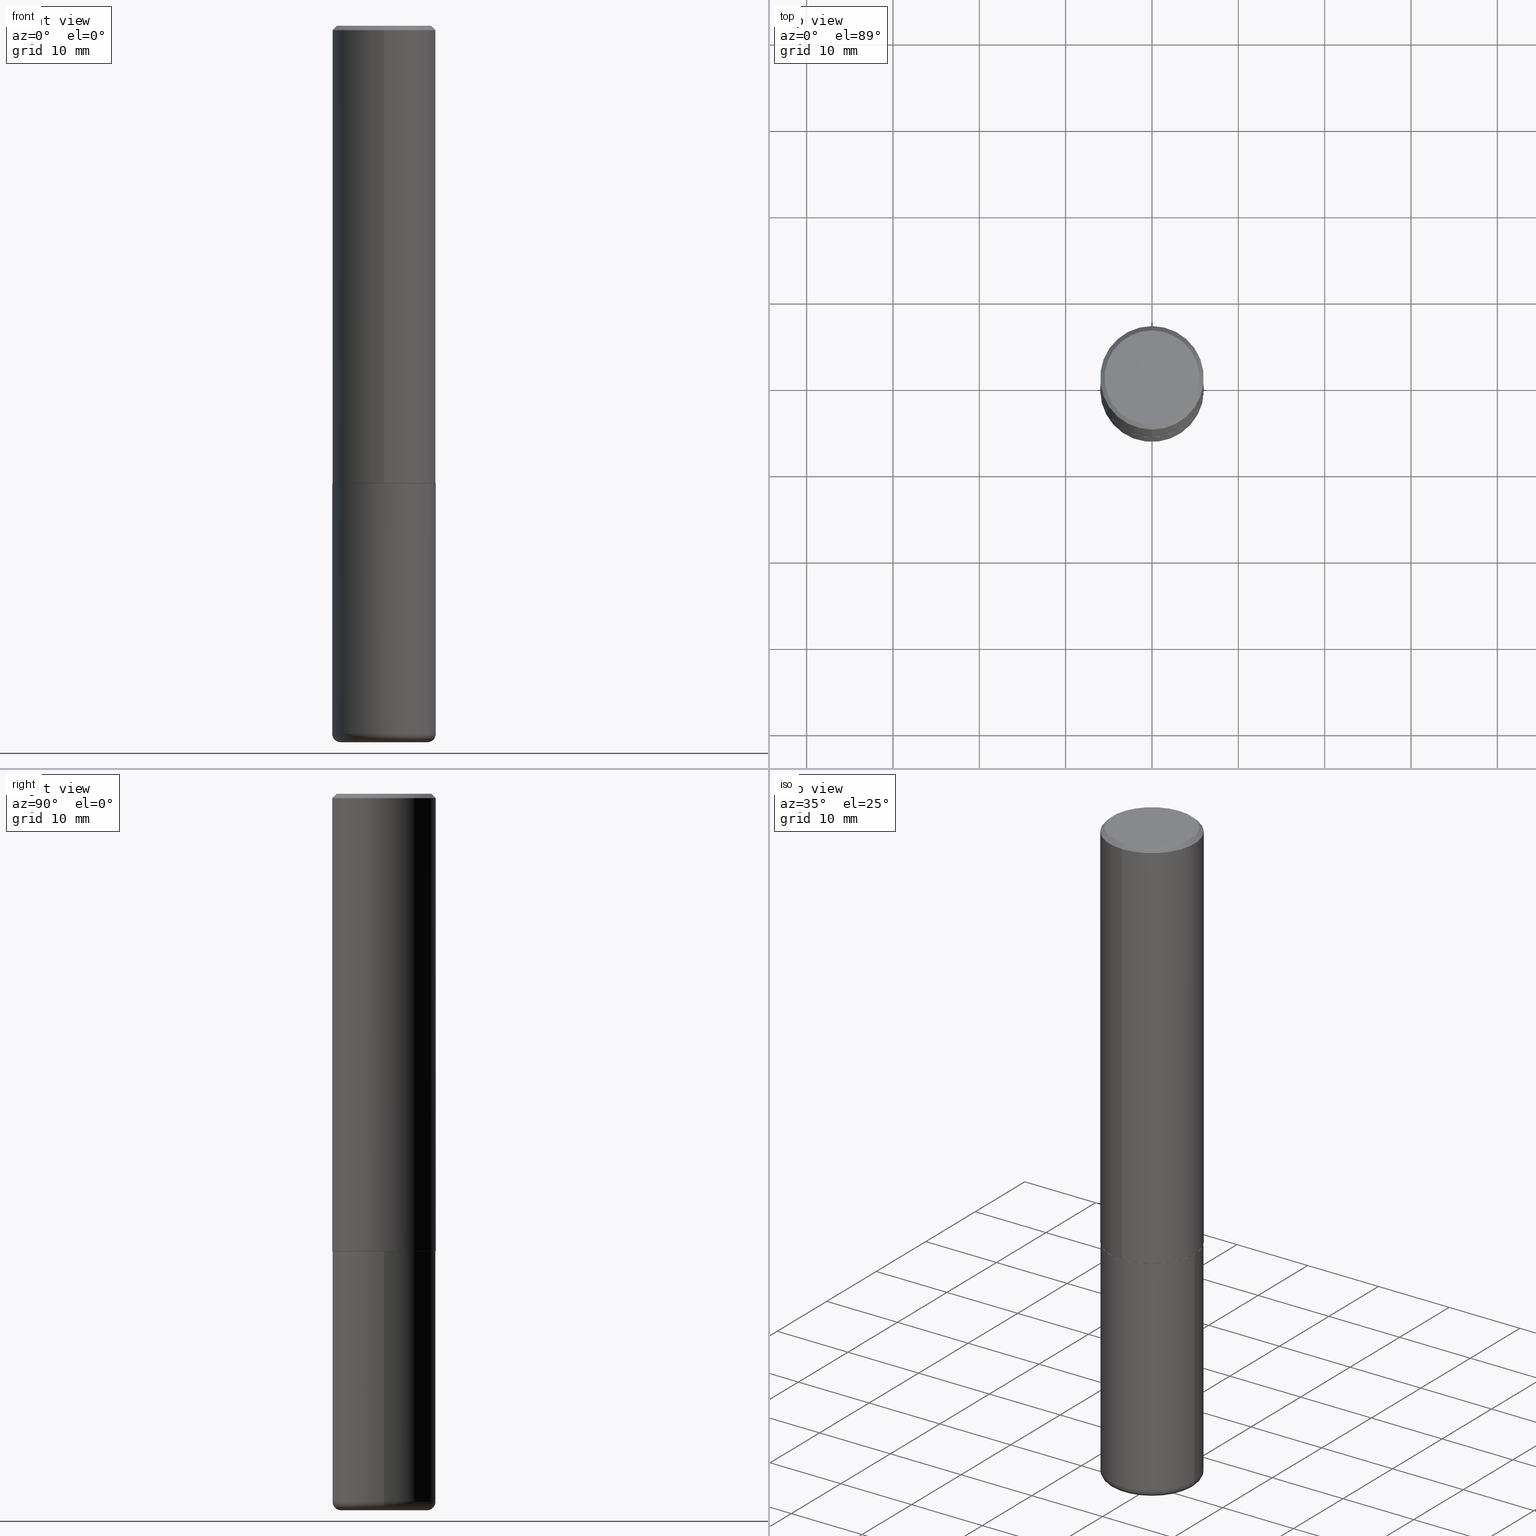
[diagram: canonical four-view strip — front | top / right | iso, engineering-drawing reading convention]
A machine part, canonical four-view strip (front | top / right | iso — engineering-drawing reading convention). The complete STEP part file that produces these views, byte-faithful:
ISO-10303-21;
HEADER;
FILE_DESCRIPTION (( 'STEP AP203' ),
    '1' );
FILE_NAME ('74443.STEP',
    '2024-03-06T15:14:48',
    ( '' ),
    ( '' ),
    'SwSTEP 2.0',
    'SolidWorks 2023',
    '' );
FILE_SCHEMA (( 'CONFIG_CONTROL_DESIGN' ));
ENDSEC;

DATA;
#1 = ORIENTED_EDGE ( 'NONE', *, *, #415, .F. ) ;
#2 = ORIENTED_EDGE ( 'NONE', *, *, #52, .T. ) ;
#3 = CALENDAR_DATE ( 2024, 6, 3 ) ;
#4 = COORDINATED_UNIVERSAL_TIME_OFFSET ( 5, 0, .BEHIND. ) ;
#5 = EDGE_LOOP ( 'NONE', ( #2, #31, #163, #109 ) ) ;
#6 = APPROVAL_ROLE ( '' ) ;
#7 = CARTESIAN_POINT ( 'NONE',  ( -6.055996773249123304E-45, 8.648664241745118212E-31, 2.476745178514206857E-16 ) ) ;
#8 = FACE_OUTER_BOUND ( 'NONE', #297, .T. ) ;
#9 = AXIS2_PLACEMENT_3D ( 'NONE', #146, #309, #22 ) ;
#10 = LOCAL_TIME ( 10, 14, 48.00000000000000000, #85 ) ;
#11 = DIRECTION ( 'NONE',  ( 1.000000000000000000, -6.982962677686265133E-15, 0.000000000000000000 ) ) ;
#12 = CC_DESIGN_PERSON_AND_ORGANIZATION_ASSIGNMENT ( #202, #379, ( #329 ) ) ;
#13 = EDGE_LOOP ( 'NONE', ( #171, #194, #40, #131 ) ) ;
#14 = LINE ( 'NONE', #217, #325 ) ;
#15 = DIMENSIONAL_EXPONENTS ( 1.000000000000000000, 0.000000000000000000, 0.000000000000000000, 0.000000000000000000, 0.000000000000000000, 0.000000000000000000, 0.000000000000000000 ) ;
#16 = CARTESIAN_POINT ( 'NONE',  ( 7.894706947007477118E-29, -1.127154920618732880E-14, -3.228299999999999947 ) ) ;
#17 = DIRECTION ( 'NONE',  ( 1.000000000000000000, -6.982962677686265133E-15, 0.000000000000000000 ) ) ;
#18 = DIRECTION ( 'NONE',  ( 1.000000000000000000, -6.982962677686270655E-15, 4.883557194083114583E-29 ) ) ;
#19 = AXIS2_PLACEMENT_3D ( 'NONE', #16, #122, #176 ) ;
#20 = AXIS2_PLACEMENT_3D ( 'NONE', #286, #373, #220 ) ;
#21 = EDGE_CURVE ( 'NONE', #207, #164, #383, .T. ) ;
#22 = DIRECTION ( 'NONE',  ( -6.982962677686265133E-15, -1.000000000000000000, 3.484499991918703113E-15 ) ) ;
#23 = CYLINDRICAL_SURFACE ( 'NONE', #372, 0.2361999999999999933 ) ;
#24 = CARTESIAN_POINT ( 'NONE',  ( 0.2362000000000000210, -1.292092499065682375E-14, -3.228299999999999947 ) ) ;
#25 = PLANE ( 'NONE',  #351 ) ;
#26 = DIRECTION ( 'NONE',  ( -6.982962677686266711E-15, -1.000000000000000000, 3.491481338843145583E-15 ) ) ;
#27 = AXIS2_PLACEMENT_3D ( 'NONE', #79, #205, #237 ) ;
#28 = PERSON_AND_ORGANIZATION ( #121, #161 ) ;
#29 = DIRECTION ( 'NONE',  ( 1.000000000000000000, -6.982962677686265133E-15, 0.000000000000000000 ) ) ;
#30 = APPROVAL_ROLE ( '' ) ;
#31 = ORIENTED_EDGE ( 'NONE', *, *, #415, .T. ) ;
#32 = CARTESIAN_POINT ( 'NONE',  ( -0.1968000000000000027, -9.873201102211451027E-15, -3.228299999999999947 ) ) ;
#33 = ORIENTED_EDGE ( 'NONE', *, *, #190, .F. ) ;
#34 = CC_DESIGN_PERSON_AND_ORGANIZATION_ASSIGNMENT ( #369, #90, ( #374 ) ) ;
#35 = APPROVAL_DATE_TIME ( #38, #99 ) ;
#36 = CIRCLE ( 'NONE', #72, 0.2362000000000002431 ) ;
#37 = LOCAL_TIME ( 10, 14, 48.00000000000000000, #4 ) ;
#38 = DATE_AND_TIME ( #385, #393 ) ;
#39 = VERTEX_POINT ( 'NONE', #111 ) ;
#40 = ORIENTED_EDGE ( 'NONE', *, *, #380, .T. ) ;
#41 = ADVANCED_FACE ( 'NONE', ( #214 ), #273, .F. ) ;
#42 = SECURITY_CLASSIFICATION_LEVEL ( 'unclassified' ) ;
#43 = VECTOR ( 'NONE', #182, 39.37007874015748854 ) ;
#44 = ORIENTED_EDGE ( 'NONE', *, *, #265, .F. ) ;
#45 = CALENDAR_DATE ( 2024, 6, 3 ) ;
#46 = DIRECTION ( 'NONE',  ( -2.445143257281760563E-29, 3.491947543401872647E-15, 1.000000000000000000 ) ) ;
#47 = ORIENTED_EDGE ( 'NONE', *, *, #21, .F. ) ;
#48 = PERSON_AND_ORGANIZATION ( #121, #161 ) ;
#49 = DIRECTION ( 'NONE',  ( -2.445468806185136597E-29, 3.491481338843145583E-15, 1.000000000000000000 ) ) ;
#50 = DATE_AND_TIME ( #340, #37 ) ;
#51 = ORIENTED_EDGE ( 'NONE', *, *, #291, .F. ) ;
#52 = EDGE_CURVE ( 'NONE', #76, #201, #231, .T. ) ;
#53 = VERTEX_POINT ( 'NONE', #88 ) ;
#54 = AXIS2_PLACEMENT_3D ( 'NONE', #102, #403, #189 ) ;
#55 = CARTESIAN_POINT ( 'NONE',  ( -1.642392821791758643E-15, -0.2352000000000072644, -2.086599999999998900 ) ) ;
#56 = DIRECTION ( 'NONE',  ( -2.445143257281760843E-29, 3.491947543401873041E-15, 1.000000000000000000 ) ) ;
#57 = CARTESIAN_POINT ( 'NONE',  ( 4.890286514563534438E-31, -6.983895086803762550E-17, -0.02000000000000005246 ) ) ;
#58 = LINE ( 'NONE', #247, #43 ) ;
#59 = CIRCLE ( 'NONE', #222, 0.2161999999999996980 ) ;
#60 = DIRECTION ( 'NONE',  ( 2.438088387897960049E-29, -3.491481338843145188E-15, -1.000000000000000000 ) ) ;
#61 = ADVANCED_FACE ( 'NONE', ( #8 ), #357, .T. ) ;
#62 = CARTESIAN_POINT ( 'NONE',  ( 0.1968000000000000027, -1.264579626115598374E-14, -3.228299999999999947 ) ) ;
#63 = CARTESIAN_POINT ( 'NONE',  ( 0.2361999999999999933, -1.649375784469496131E-15, 1.151752954443000088E-29 ) ) ;
#64 = CARTESIAN_POINT ( 'NONE',  ( 0.000000000000000000, 0.000000000000000000, 0.000000000000000000 ) ) ;
#65 = AXIS2_PLACEMENT_3D ( 'NONE', #91, #274, #11 ) ;
#66 = PERSON_AND_ORGANIZATION ( #121, #161 ) ;
#67 = DIRECTION ( 'NONE',  ( -2.445468806185136877E-29, 3.491481338843145188E-15, 1.000000000000000000 ) ) ;
#68 = EDGE_CURVE ( 'NONE', #324, #413, #103, .T. ) ;
#69 = CARTESIAN_POINT ( 'NONE',  ( -0.2362000000000000210, -9.593247264321970832E-15, -3.228299999999999947 ) ) ;
#70 = ORIENTED_EDGE ( 'NONE', *, *, #291, .T. ) ;
#71 = DESIGN_CONTEXT ( 'detailed design', #268, 'design' ) ;
#72 = AXIS2_PLACEMENT_3D ( 'NONE', #118, #331, #341 ) ;
#73 = APPROVAL_PERSON_ORGANIZATION ( #328, #414, #6 ) ;
#74 = ORIENTED_EDGE ( 'NONE', *, *, #322, .F. ) ;
#75 = APPROVAL_DATE_TIME ( #50, #397 ) ;
#76 = VERTEX_POINT ( 'NONE', #361 ) ;
#77 = APPROVAL_DATE_TIME ( #243, #414 ) ;
#78 = CIRCLE ( 'NONE', #412, 0.2361999999999999933 ) ;
#79 = CARTESIAN_POINT ( 'NONE',  ( 5.102035920644121054E-29, -7.286297744062347012E-15, -2.086599999999999788 ) ) ;
#80 = APPROVAL_PERSON_ORGANIZATION ( #320, #397, #330 ) ;
#81 = FACE_OUTER_BOUND ( 'NONE', #416, .T. ) ;
#82 = DATE_TIME_ROLE ( 'classification_date' ) ;
#83 = ADVANCED_FACE ( 'NONE', ( #81 ), #132, .T. ) ;
#84 = ORIENTED_EDGE ( 'NONE', *, *, #254, .T. ) ;
#85 = COORDINATED_UNIVERSAL_TIME_OFFSET ( 5, 0, .BEHIND. ) ;
#86 = ADVANCED_BREP_SHAPE_REPRESENTATION ( '74443', ( #355, #221, #213 ), #245 ) ;
#87 = CARTESIAN_POINT ( 'NONE',  ( -0.2361999999999999933, -7.600135142043360927E-15, -2.086600000000000232 ) ) ;
#88 = CARTESIAN_POINT ( 'NONE',  ( 0.2361999999999999933, -8.934700746099602364E-15, -2.086600000000000232 ) ) ;
#89 = ORIENTED_EDGE ( 'NONE', *, *, #190, .T. ) ;
#90 = PERSON_AND_ORGANIZATION_ROLE ( 'design_supplier' ) ;
#91 = CARTESIAN_POINT ( 'NONE',  ( 7.894706947007477118E-29, -1.127154920618732880E-14, -3.228299999999999947 ) ) ;
#92 = CARTESIAN_POINT ( 'NONE',  ( 1.579546157692632438E-15, 0.2161999999999996980, -5.072845410320630762E-16 ) ) ;
#93 = DIRECTION ( 'NONE',  ( -2.445143257281760563E-29, 3.491947543401872647E-15, 1.000000000000000000 ) ) ;
#94 = CARTESIAN_POINT ( 'NONE',  ( -0.2361999999999999933, 1.678301941865356591E-15, -1.161852468318208757E-29 ) ) ;
#95 = CARTESIAN_POINT ( 'NONE',  ( 4.890286514563534438E-31, -6.983895086803762550E-17, -0.02000000000000005246 ) ) ;
#96 = VECTOR ( 'NONE', #402, 39.37007874015748143 ) ;
#97 = CARTESIAN_POINT ( 'NONE',  ( 0.000000000000000000, 0.000000000000000000, 0.000000000000000000 ) ) ;
#98 = CARTESIAN_POINT ( 'NONE',  ( -1.649375784469446630E-15, -0.2362000000000075151, -2.085599999999999010 ) ) ;
#99 = APPROVAL ( #317, 'UNSPECIFIED' ) ;
#100 =( NAMED_UNIT ( * ) PLANE_ANGLE_UNIT ( ) SI_UNIT ( $, .RADIAN. ) );
#101 = PRODUCT_DEFINITION_SHAPE ( 'NONE', 'NONE',  #329 ) ;
#102 = CARTESIAN_POINT ( 'NONE',  ( 5.102035920644121054E-29, -7.286297744062347012E-15, -2.086599999999999788 ) ) ;
#103 = CIRCLE ( 'NONE', #27, 0.2351999999999999924 ) ;
#104 = DIRECTION ( 'NONE',  ( -2.445468806185136877E-29, 3.491481338843145188E-15, 1.000000000000000000 ) ) ;
#105 = ADVANCED_FACE ( 'NONE', ( #401 ), #256, .T. ) ;
#106 = EDGE_LOOP ( 'NONE', ( #70, #388, #33, #262 ) ) ;
#107 = DATE_AND_TIME ( #193, #224 ) ;
#108 = VECTOR ( 'NONE', #313, 39.37007874015748143 ) ;
#109 = ORIENTED_EDGE ( 'NONE', *, *, #200, .F. ) ;
#110 = ORIENTED_EDGE ( 'NONE', *, *, #185, .T. ) ;
#111 = CARTESIAN_POINT ( 'NONE',  ( -1.551844647095918761E-15, -0.2161999999999996980, 1.002633576734904349E-15 ) ) ;
#112 = CIRCLE ( 'NONE', #310, 0.2361999999999999933 ) ;
#113 = CIRCLE ( 'NONE', #204, 0.1968000000000000027 ) ;
#114 = ORIENTED_EDGE ( 'NONE', *, *, #21, .T. ) ;
#115 = ADVANCED_FACE ( 'NONE', ( #406 ), #375, .T. ) ;
#116 = DIRECTION ( 'NONE',  ( -6.982962677686265922E-15, -1.000000000000000000, 3.491947543401872253E-15 ) ) ;
#117 = ORIENTED_EDGE ( 'NONE', *, *, #380, .F. ) ;
#118 = CARTESIAN_POINT ( 'NONE',  ( 5.099590777386840224E-29, -7.282805796518945829E-15, -2.085599999999999898 ) ) ;
#119 = ORIENTED_EDGE ( 'NONE', *, *, #155, .T. ) ;
#120 = ADVANCED_FACE ( 'NONE', ( #156 ), #282, .T. ) ;
#121 = PERSON ( 'UNSPECIFIED', 'UNSPECIFIED', 'UNSPECIFIED', ('UNSPECIFIED'), ('UNSPECIFIED'), ('UNSPECIFIED') ) ;
#122 = DIRECTION ( 'NONE',  ( -2.445468806185136597E-29, 3.491481338843145583E-15, 1.000000000000000000 ) ) ;
#123 = DIRECTION ( 'NONE',  ( -2.445143257281760563E-29, 3.491947543401872647E-15, 1.000000000000000000 ) ) ;
#124 = PRODUCT ( '74443', '74443', '', ( #188 ) ) ;
#125 = DIRECTION ( 'NONE',  ( -6.982962677686265922E-15, -1.000000000000000000, 3.491947543401872253E-15 ) ) ;
#126 = CARTESIAN_POINT ( 'NONE',  ( 0.000000000000000000, 0.000000000000000000, 0.000000000000000000 ) ) ;
#127 = CIRCLE ( 'NONE', #150, 0.03940000000000005997 ) ;
#128 = EDGE_CURVE ( 'NONE', #413, #207, #58, .T. ) ;
#129 = CARTESIAN_POINT ( 'NONE',  ( 7.894706947007477118E-29, -1.127154920618732880E-14, -3.228299999999999947 ) ) ;
#130 = DIRECTION ( 'NONE',  ( -2.445468806185136597E-29, 3.491481338843145583E-15, 1.000000000000000000 ) ) ;
#131 = ORIENTED_EDGE ( 'NONE', *, *, #318, .F. ) ;
#132 = CONICAL_SURFACE ( 'NONE', #407, 0.2351999999999999924, 0.7853981633976704346 ) ;
#133 = AXIS2_PLACEMENT_3D ( 'NONE', #32, #319, #376 ) ;
#134 = ORIENTED_EDGE ( 'NONE', *, *, #404, .F. ) ;
#135 = ORIENTED_EDGE ( 'NONE', *, *, #68, .T. ) ;
#136 = ADVANCED_FACE ( 'NONE', ( #152 ), #315, .T. ) ;
#137 = CC_DESIGN_PERSON_AND_ORGANIZATION_ASSIGNMENT ( #48, #177, ( #270 ) ) ;
#138 = EDGE_LOOP ( 'NONE', ( #417, #174 ) ) ;
#139 = ORIENTED_EDGE ( 'NONE', *, *, #305, .T. ) ;
#140 = CARTESIAN_POINT ( 'NONE',  ( 1.509716530915768548E-15, 0.2161999999999996980, -6.311217999577736163E-16 ) ) ;
#141 = ADVANCED_FACE ( 'NONE', ( #311 ), #292, .T. ) ;
#142 = ORIENTED_EDGE ( 'NONE', *, *, #128, .F. ) ;
#143 = CONICAL_SURFACE ( 'NONE', #197, 0.2361999999999999655, 0.7853981633974473908 ) ;
#144 = CARTESIAN_POINT ( 'NONE',  ( 5.102035920644121054E-29, -7.286297744062347012E-15, -2.086599999999999788 ) ) ;
#145 = ORIENTED_EDGE ( 'NONE', *, *, #364, .F. ) ;
#146 = CARTESIAN_POINT ( 'NONE',  ( 5.102035920644121054E-29, -7.286297744062347012E-15, -2.086599999999999788 ) ) ;
#147 = ORIENTED_EDGE ( 'NONE', *, *, #200, .T. ) ;
#148 = CARTESIAN_POINT ( 'NONE',  ( 4.890286514563534438E-31, -6.983895086803762550E-17, -0.02000000000000005246 ) ) ;
#149 = CARTESIAN_POINT ( 'NONE',  ( -1.620449627073634881E-15, -0.2362000000000000210, -0.01999999999999922673 ) ) ;
#150 = AXIS2_PLACEMENT_3D ( 'NONE', #62, #26, #344 ) ;
#151 = DIRECTION ( 'NONE',  ( -2.445143257281760563E-29, 3.491947543401872647E-15, 1.000000000000000000 ) ) ;
#152 = FACE_OUTER_BOUND ( 'NONE', #5, .T. ) ;
#153 = LENGTH_MEASURE_WITH_UNIT ( LENGTH_MEASURE( 0.02539999999999999897 ), #378 );
#154 = DIRECTION ( 'NONE',  ( -2.445143257281760563E-29, 3.491947543401872647E-15, 1.000000000000000000 ) ) ;
#155 = EDGE_CURVE ( 'NONE', #39, #267, #173, .T. ) ;
#156 = FACE_OUTER_BOUND ( 'NONE', #323, .T. ) ;
#157 = PERSON_AND_ORGANIZATION_ROLE ( 'design_owner' ) ;
#158 = DIRECTION ( 'NONE',  ( -2.445468806185136597E-29, 3.491481338843145583E-15, 1.000000000000000000 ) ) ;
#159 = ADVANCED_FACE ( 'NONE', ( #312 ), #23, .T. ) ;
#160 = ORIENTED_EDGE ( 'NONE', *, *, #409, .T. ) ;
#161 = ORGANIZATION ( 'UNSPECIFIED', 'UNSPECIFIED', '' ) ;
#162 = EDGE_CURVE ( 'NONE', #207, #271, #252, .T. ) ;
#163 = ORIENTED_EDGE ( 'NONE', *, *, #283, .F. ) ;
#164 = VERTEX_POINT ( 'NONE', #98 ) ;
#165 = VERTEX_POINT ( 'NONE', #287 ) ;
#166 = AXIS2_PLACEMENT_3D ( 'NONE', #360, #394, #277 ) ;
#167 = VECTOR ( 'NONE', #104, 39.37007874015748143 ) ;
#168 = ORIENTED_EDGE ( 'NONE', *, *, #162, .F. ) ;
#169 = ORIENTED_EDGE ( 'NONE', *, *, #364, .T. ) ;
#170 = PERSON_AND_ORGANIZATION ( #121, #161 ) ;
#171 = ORIENTED_EDGE ( 'NONE', *, *, #386, .F. ) ;
#172 = DATE_AND_TIME ( #3, #389 ) ;
#173 = CIRCLE ( 'NONE', #191, 0.2161999999999996980 ) ;
#174 = ORIENTED_EDGE ( 'NONE', *, *, #409, .F. ) ;
#175 = DIRECTION ( 'NONE',  ( -2.445468806185136597E-29, 3.491481338843145583E-15, 1.000000000000000000 ) ) ;
#176 = DIRECTION ( 'NONE',  ( 1.000000000000000000, -6.982962677686270655E-15, 4.883557194083114583E-29 ) ) ;
#177 = PERSON_AND_ORGANIZATION_ROLE ( 'classification_officer' ) ;
#178 = DIRECTION ( 'NONE',  ( 4.937700262164543309E-15, 0.7071067811865444641, -0.7071067811865505703 ) ) ;
#179 = CARTESIAN_POINT ( 'NONE',  ( 0.000000000000000000, 0.000000000000000000, 0.000000000000000000 ) ) ;
#180 = DIRECTION ( 'NONE',  ( 6.982962677686265922E-15, 1.000000000000000000, -3.487819265831412139E-15 ) ) ;
#181 = CIRCLE ( 'NONE', #251, 0.2361999999999999655 ) ;
#182 = DIRECTION ( 'NONE',  ( 5.024295867789177050E-15, 0.7071067811867068897, 0.7071067811863879227 ) ) ;
#183 = APPROVAL_PERSON_ORGANIZATION ( #66, #99, #30 ) ;
#184 = CC_DESIGN_DATE_AND_TIME_ASSIGNMENT ( #107, #228, ( #329 ) ) ;
#185 = EDGE_CURVE ( 'NONE', #39, #165, #225, .T. ) ;
#186 = FACE_OUTER_BOUND ( 'NONE', #294, .T. ) ;
#187 = DIRECTION ( 'NONE',  ( -1.000000000000000000, 6.982962677686265922E-15, -4.876176775795935793E-29 ) ) ;
#188 = MECHANICAL_CONTEXT ( 'NONE', #293, 'mechanical' ) ;
#189 = DIRECTION ( 'NONE',  ( -6.982962677686265133E-15, -1.000000000000000000, 3.484499991918703113E-15 ) ) ;
#190 = EDGE_CURVE ( 'NONE', #165, #271, #181, .T. ) ;
#191 = AXIS2_PLACEMENT_3D ( 'NONE', #370, #93, #125 ) ;
#192 = DIRECTION ( 'NONE',  ( 1.000000000000000000, -6.982962677686271444E-15, 0.000000000000000000 ) ) ;
#193 = CALENDAR_DATE ( 2024, 6, 3 ) ;
#194 = ORIENTED_EDGE ( 'NONE', *, *, #248, .T. ) ;
#195 = CARTESIAN_POINT ( 'NONE',  ( 4.890286514563534438E-31, -6.983895086803762550E-17, -0.02000000000000005246 ) ) ;
#196 = EDGE_LOOP ( 'NONE', ( #327, #276, #134, #117 ) ) ;
#197 = AXIS2_PLACEMENT_3D ( 'NONE', #57, #336, #180 ) ;
#198 = CIRCLE ( 'NONE', #20, 0.2361999999999999933 ) ;
#199 = APPROVAL_STATUS ( 'not_yet_approved' ) ;
#200 = EDGE_CURVE ( 'NONE', #76, #395, #127, .T. ) ;
#201 = VERTEX_POINT ( 'NONE', #371 ) ;
#202 = PERSON_AND_ORGANIZATION ( #121, #161 ) ;
#203 = VECTOR ( 'NONE', #56, 39.37007874015748143 ) ;
#204 = AXIS2_PLACEMENT_3D ( 'NONE', #405, #382, #192 ) ;
#205 = DIRECTION ( 'NONE',  ( -2.445143257281760563E-29, 3.491947543401872647E-15, 1.000000000000000000 ) ) ;
#206 = CARTESIAN_POINT ( 'NONE',  ( 5.102715210985906276E-29, -7.285324961630107416E-15, -2.086600000000000232 ) ) ;
#207 = VERTEX_POINT ( 'NONE', #339 ) ;
#208 = COORDINATED_UNIVERSAL_TIME_OFFSET ( 5, 0, .BEHIND. ) ;
#209 = ORIENTED_EDGE ( 'NONE', *, *, #305, .F. ) ;
#210 = CC_DESIGN_PERSON_AND_ORGANIZATION_ASSIGNMENT ( #170, #295, ( #374 ) ) ;
#211 = FACE_OUTER_BOUND ( 'NONE', #230, .T. ) ;
#212 = AXIS2_PLACEMENT_3D ( 'NONE', #64, #280, #223 ) ;
#213 = AXIS2_PLACEMENT_3D ( 'NONE', #97, #345, #347 ) ;
#214 = FACE_OUTER_BOUND ( 'NONE', #269, .T. ) ;
#215 = LINE ( 'NONE', #55, #96 ) ;
#216 = CARTESIAN_POINT ( 'NONE',  ( -1.649375784469496722E-15, -0.2362000000000001043, 8.247980097515226939E-16 ) ) ;
#217 = CARTESIAN_POINT ( 'NONE',  ( 1.649375784469496131E-15, 0.2361999999999998823, -0.02000000000000087472 ) ) ;
#218 = DIRECTION ( 'NONE',  ( -1.000000000000000000, 6.982962677686265922E-15, -4.876176775795935793E-29 ) ) ;
#219 = CC_DESIGN_PERSON_AND_ORGANIZATION_ASSIGNMENT ( #28, #157, ( #124 ) ) ;
#220 = DIRECTION ( 'NONE',  ( 1.000000000000000000, -6.982962677686265133E-15, 0.000000000000000000 ) ) ;
#221 = MANIFOLD_SOLID_BREP ( 'Body-Move/Copy2[2]', #352 ) ;
#222 = AXIS2_PLACEMENT_3D ( 'NONE', #7, #151, #116 ) ;
#223 = DIRECTION ( 'NONE',  ( -6.982962677686265922E-15, -1.000000000000000000, 3.491947543401872647E-15 ) ) ;
#224 = LOCAL_TIME ( 10, 14, 48.00000000000000000, #289 ) ;
#225 = LINE ( 'NONE', #149, #367 ) ;
#226 = DIRECTION ( 'NONE',  ( 1.000000000000000000, -6.982962677686266711E-15, 4.876176775795936353E-29 ) ) ;
#227 = CONICAL_SURFACE ( 'NONE', #278, 0.2361999999999999655, 0.7853981633974473908 ) ;
#228 = DATE_TIME_ROLE ( 'creation_date' ) ;
#229 = PRODUCT_RELATED_PRODUCT_CATEGORY ( 'detail', '', ( #124 ) ) ;
#230 = EDGE_LOOP ( 'NONE', ( #337, #110, #89, #209 ) ) ;
#231 = CIRCLE ( 'NONE', #335, 0.1968000000000000027 ) ;
#232 = ADVANCED_FACE ( 'NONE', ( #186 ), #25, .F. ) ;
#233 = ORIENTED_EDGE ( 'NONE', *, *, #318, .T. ) ;
#234 = FACE_OUTER_BOUND ( 'NONE', #196, .T. ) ;
#235 = DIRECTION ( 'NONE',  ( -2.445143257281760563E-29, 3.491947543401872647E-15, 1.000000000000000000 ) ) ;
#236 = AXIS2_PLACEMENT_3D ( 'NONE', #129, #158, #18 ) ;
#237 = DIRECTION ( 'NONE',  ( -6.982962677686265133E-15, -1.000000000000000000, 3.484499991918703113E-15 ) ) ;
#238 = FACE_OUTER_BOUND ( 'NONE', #304, .T. ) ;
#239 = ORIENTED_EDGE ( 'NONE', *, *, #128, .T. ) ;
#240 = APPROVAL_STATUS ( 'not_yet_approved' ) ;
#241 = DIRECTION ( 'NONE',  ( 6.982962677686265922E-15, 1.000000000000000000, -3.487819265831412139E-15 ) ) ;
#242 = ORIENTED_EDGE ( 'NONE', *, *, #248, .F. ) ;
#243 = DATE_AND_TIME ( #45, #10 ) ;
#244 = AXIS2_PLACEMENT_3D ( 'NONE', #258, #49, #384 ) ;
#245 =( GEOMETRIC_REPRESENTATION_CONTEXT ( 3 ) GLOBAL_UNCERTAINTY_ASSIGNED_CONTEXT ( ( #349 ) ) GLOBAL_UNIT_ASSIGNED_CONTEXT ( ( #255, #100, #314 ) ) REPRESENTATION_CONTEXT ( 'NONE', 'WORKASPACE' ) );
#246 = CARTESIAN_POINT ( 'NONE',  ( 5.099590777386840224E-29, -7.282805796518945829E-15, -2.085599999999999898 ) ) ;
#247 = CARTESIAN_POINT ( 'NONE',  ( 1.671196514507806268E-15, 0.2351999999999927204, -2.086600000000000676 ) ) ;
#248 = EDGE_CURVE ( 'NONE', #263, #395, #112, .T. ) ;
#249 = CARTESIAN_POINT ( 'NONE',  ( 1.678301941865357183E-15, 0.2362000000000001043, -8.247980097515226939E-16 ) ) ;
#250 = APPLICATION_PROTOCOL_DEFINITION ( 'international standard', 'config_control_design', 1994, #293 ) ;
#251 = AXIS2_PLACEMENT_3D ( 'NONE', #95, #346, #307 ) ;
#252 = LINE ( 'NONE', #249, #108 ) ;
#253 = CC_DESIGN_APPROVAL ( #99, ( #329 ) ) ;
#254 = EDGE_CURVE ( 'NONE', #164, #165, #257, .T. ) ;
#255 =( CONVERSION_BASED_UNIT ( 'INCH', #153 ) LENGTH_UNIT ( ) NAMED_UNIT ( #15 ) );
#256 = PLANE ( 'NONE',  #387 ) ;
#257 = LINE ( 'NONE', #216, #203 ) ;
#258 = CARTESIAN_POINT ( 'NONE',  ( 0.000000000000000000, 0.000000000000000000, 0.000000000000000000 ) ) ;
#259 = AXIS2_PLACEMENT_3D ( 'NONE', #246, #235, #302 ) ;
#260 = CC_DESIGN_APPROVAL ( #397, ( #374 ) ) ;
#261 = ADVANCED_FACE ( 'NONE', ( #234 ), #326, .T. ) ;
#262 = ORIENTED_EDGE ( 'NONE', *, *, #254, .F. ) ;
#263 = VERTEX_POINT ( 'NONE', #69 ) ;
#264 = CC_DESIGN_APPROVAL ( #414, ( #270 ) ) ;
#265 = EDGE_CURVE ( 'NONE', #271, #165, #392, .T. ) ;
#266 = ORIENTED_EDGE ( 'NONE', *, *, #322, .T. ) ;
#267 = VERTEX_POINT ( 'NONE', #92 ) ;
#268 = APPLICATION_CONTEXT ( 'configuration controlled 3d designs of mechanical parts and assemblies' ) ;
#269 = EDGE_LOOP ( 'NONE', ( #266, #119 ) ) ;
#270 = SECURITY_CLASSIFICATION ( '', '', #42 ) ;
#271 = VERTEX_POINT ( 'NONE', #303 ) ;
#272 = EDGE_CURVE ( 'NONE', #324, #164, #215, .T. ) ;
#273 = PLANE ( 'NONE',  #308 ) ;
#274 = DIRECTION ( 'NONE',  ( -2.445468806185136597E-29, 3.491481338843145583E-15, 1.000000000000000000 ) ) ;
#275 = DIRECTION ( 'NONE',  ( -6.982962677686265922E-15, -1.000000000000000000, 3.487819265831412139E-15 ) ) ;
#276 = ORIENTED_EDGE ( 'NONE', *, *, #386, .T. ) ;
#277 = DIRECTION ( 'NONE',  ( -6.982962677686265922E-15, -1.000000000000000000, 3.491947543401873041E-15 ) ) ;
#278 = AXIS2_PLACEMENT_3D ( 'NONE', #148, #306, #241 ) ;
#279 = CC_DESIGN_SECURITY_CLASSIFICATION ( #270, ( #374 ) ) ;
#280 = DIRECTION ( 'NONE',  ( -2.445143257281760563E-29, 3.491947543401872647E-15, 1.000000000000000000 ) ) ;
#281 = LINE ( 'NONE', #63, #301 ) ;
#282 = CYLINDRICAL_SURFACE ( 'NONE', #353, 0.2362000000000001043 ) ;
#283 = EDGE_CURVE ( 'NONE', #395, #263, #399, .T. ) ;
#284 = CLOSED_SHELL ( 'NONE', ( #261, #136, #232, #159, #61, #105 ) ) ;
#285 = CARTESIAN_POINT ( 'NONE',  ( 7.991058417971171713E-29, -1.140911357093774644E-14, -3.267700000000000049 ) ) ;
#286 = CARTESIAN_POINT ( 'NONE',  ( 5.102715210985906276E-29, -7.285324961630107416E-15, -2.086600000000000232 ) ) ;
#287 = CARTESIAN_POINT ( 'NONE',  ( -1.620449627073634881E-15, -0.2362000000000000210, -0.01999999999999922673 ) ) ;
#288 = ADVANCED_FACE ( 'NONE', ( #362 ), #227, .T. ) ;
#289 = COORDINATED_UNIVERSAL_TIME_OFFSET ( 5, 0, .BEHIND. ) ;
#290 = EDGE_LOOP ( 'NONE', ( #142, #169, #368, #47 ) ) ;
#291 = EDGE_CURVE ( 'NONE', #164, #207, #36, .T. ) ;
#292 = CONICAL_SURFACE ( 'NONE', #54, 0.2351999999999999924, 0.7853981633976704346 ) ;
#293 = APPLICATION_CONTEXT ( 'configuration controlled 3d designs of mechanical parts and assemblies' ) ;
#294 = EDGE_LOOP ( 'NONE', ( #391, #233 ) ) ;
#295 = PERSON_AND_ORGANIZATION_ROLE ( 'creator' ) ;
#296 = ORIENTED_EDGE ( 'NONE', *, *, #185, .F. ) ;
#297 = EDGE_LOOP ( 'NONE', ( #1, #160, #147, #242 ) ) ;
#298 = CC_DESIGN_DATE_AND_TIME_ASSIGNMENT ( #172, #82, ( #270 ) ) ;
#299 = ADVANCED_FACE ( 'NONE', ( #238 ), #338, .F. ) ;
#300 = DIRECTION ( 'NONE',  ( -2.445468806185136597E-29, 3.491481338843145583E-15, 1.000000000000000000 ) ) ;
#301 = VECTOR ( 'NONE', #67, 39.37007874015748143 ) ;
#302 = DIRECTION ( 'NONE',  ( -6.982962677686265922E-15, -1.000000000000000000, 3.469747663417773452E-15 ) ) ;
#303 = CARTESIAN_POINT ( 'NONE',  ( 1.649375784469496131E-15, 0.2361999999999998823, -0.02000000000000087472 ) ) ;
#304 = EDGE_LOOP ( 'NONE', ( #333, #145 ) ) ;
#305 = EDGE_CURVE ( 'NONE', #267, #271, #14, .T. ) ;
#306 = DIRECTION ( 'NONE',  ( 2.445143257281760563E-29, -3.491947543401872647E-15, -1.000000000000000000 ) ) ;
#307 = DIRECTION ( 'NONE',  ( -6.982962677686265922E-15, -1.000000000000000000, 3.487819265831412139E-15 ) ) ;
#308 = AXIS2_PLACEMENT_3D ( 'NONE', #140, #396, #390 ) ;
#309 = DIRECTION ( 'NONE',  ( -2.445143257281760563E-29, 3.491947543401872647E-15, 1.000000000000000000 ) ) ;
#310 = AXIS2_PLACEMENT_3D ( 'NONE', #408, #130, #29 ) ;
#311 = FACE_OUTER_BOUND ( 'NONE', #290, .T. ) ;
#312 = FACE_OUTER_BOUND ( 'NONE', #13, .T. ) ;
#313 = DIRECTION ( 'NONE',  ( -2.445143257281760843E-29, 3.491947543401873041E-15, 1.000000000000000000 ) ) ;
#314 =( NAMED_UNIT ( * ) SI_UNIT ( $, .STERADIAN. ) SOLID_ANGLE_UNIT ( ) );
#315 = TOROIDAL_SURFACE ( 'NONE', #236, 0.1968000000000000027, 0.03940000000000005997 ) ;
#316 = CARTESIAN_POINT ( 'NONE',  ( 5.102715210985906276E-29, -7.285324961630107416E-15, -2.086600000000000232 ) ) ;
#317 = APPROVAL_STATUS ( 'not_yet_approved' ) ;
#318 = EDGE_CURVE ( 'NONE', #332, #53, #78, .T. ) ;
#319 = DIRECTION ( 'NONE',  ( 7.105427357601001859E-15, 1.000000000000000000, -3.491481338843145583E-15 ) ) ;
#320 = PERSON_AND_ORGANIZATION ( #121, #161 ) ;
#321 = CIRCLE ( 'NONE', #9, 0.2351999999999999924 ) ;
#322 = EDGE_CURVE ( 'NONE', #267, #39, #59, .T. ) ;
#323 = EDGE_LOOP ( 'NONE', ( #168, #114, #84, #44 ) ) ;
#324 = VERTEX_POINT ( 'NONE', #365 ) ;
#325 = VECTOR ( 'NONE', #178, 39.37007874015748143 ) ;
#326 = CYLINDRICAL_SURFACE ( 'NONE', #244, 0.2361999999999999933 ) ;
#327 = ORIENTED_EDGE ( 'NONE', *, *, #283, .T. ) ;
#328 = PERSON_AND_ORGANIZATION ( #121, #161 ) ;
#329 = PRODUCT_DEFINITION ( 'UNKNOWN', '', #374, #71 ) ;
#330 = APPROVAL_ROLE ( '' ) ;
#331 = DIRECTION ( 'NONE',  ( -2.445143257281760563E-29, 3.491947543401872647E-15, 1.000000000000000000 ) ) ;
#332 = VERTEX_POINT ( 'NONE', #87 ) ;
#333 = ORIENTED_EDGE ( 'NONE', *, *, #68, .F. ) ;
#334 = SHAPE_DEFINITION_REPRESENTATION ( #101, #86 ) ;
#335 = AXIS2_PLACEMENT_3D ( 'NONE', #356, #300, #366 ) ;
#336 = DIRECTION ( 'NONE',  ( 2.445143257281760563E-29, -3.491947543401872647E-15, -1.000000000000000000 ) ) ;
#337 = ORIENTED_EDGE ( 'NONE', *, *, #155, .F. ) ;
#338 = PLANE ( 'NONE',  #166 ) ;
#339 = CARTESIAN_POINT ( 'NONE',  ( 1.678301941865383215E-15, 0.2361999999999929711, -2.085600000000000787 ) ) ;
#340 = CALENDAR_DATE ( 2024, 6, 3 ) ;
#341 = DIRECTION ( 'NONE',  ( -6.982962677686265922E-15, -1.000000000000000000, 3.469747663417773452E-15 ) ) ;
#342 = DIRECTION ( 'NONE',  ( -6.982962677686265922E-15, -1.000000000000000000, 3.491947543401872647E-15 ) ) ;
#343 = CARTESIAN_POINT ( 'NONE',  ( 1.674749228186607758E-15, 0.2351999999999927204, -2.086600000000000676 ) ) ;
#344 = DIRECTION ( 'NONE',  ( 1.000000000000000000, -6.982962677686267499E-15, 0.000000000000000000 ) ) ;
#345 = DIRECTION ( 'NONE',  ( 0.000000000000000000, 0.000000000000000000, 1.000000000000000000 ) ) ;
#346 = DIRECTION ( 'NONE',  ( -2.445143257281760563E-29, 3.491947543401872647E-15, 1.000000000000000000 ) ) ;
#347 = DIRECTION ( 'NONE',  ( 1.000000000000000000, 0.000000000000000000, 0.000000000000000000 ) ) ;
#348 = DIRECTION ( 'NONE',  ( 2.438088387897960049E-29, -3.491481338843145188E-15, -1.000000000000000000 ) ) ;
#349 = UNCERTAINTY_MEASURE_WITH_UNIT (LENGTH_MEASURE( 1.000000000000000082E-05 ), #255, 'distance_accuracy_value', 'NONE');
#350 = APPLICATION_PROTOCOL_DEFINITION ( 'international standard', 'config_control_design', 1994, #268 ) ;
#351 = AXIS2_PLACEMENT_3D ( 'NONE', #316, #348, #187 ) ;
#352 = CLOSED_SHELL ( 'NONE', ( #83, #115, #358, #288, #120, #141, #299, #41 ) ) ;
#353 = AXIS2_PLACEMENT_3D ( 'NONE', #179, #123, #342 ) ;
#354 = EDGE_LOOP ( 'NONE', ( #296, #74, #139, #363 ) ) ;
#355 = MANIFOLD_SOLID_BREP ( 'Body-Move/Copy2[1]', #284 ) ;
#356 = CARTESIAN_POINT ( 'NONE',  ( 7.991058417971171713E-29, -1.140911357093774644E-14, -3.267700000000000049 ) ) ;
#357 = TOROIDAL_SURFACE ( 'NONE', #19, 0.1968000000000000027, 0.03940000000000005997 ) ;
#358 = ADVANCED_FACE ( 'NONE', ( #211 ), #143, .T. ) ;
#359 = CIRCLE ( 'NONE', #133, 0.03940000000000005997 ) ;
#360 = CARTESIAN_POINT ( 'NONE',  ( 5.102035920644122175E-29, -7.286297744062347012E-15, -2.086600000000000232 ) ) ;
#361 = CARTESIAN_POINT ( 'NONE',  ( 0.1968000000000000027, -1.278336062590640454E-14, -3.267700000000000049 ) ) ;
#362 = FACE_OUTER_BOUND ( 'NONE', #354, .T. ) ;
#363 = ORIENTED_EDGE ( 'NONE', *, *, #265, .T. ) ;
#364 = EDGE_CURVE ( 'NONE', #413, #324, #321, .T. ) ;
#365 = CARTESIAN_POINT ( 'NONE',  ( -1.642392821791758643E-15, -0.2352000000000072644, -2.086599999999998900 ) ) ;
#366 = DIRECTION ( 'NONE',  ( 1.000000000000000000, -6.982962677686271444E-15, 0.000000000000000000 ) ) ;
#367 = VECTOR ( 'NONE', #410, 39.37007874015748143 ) ;
#368 = ORIENTED_EDGE ( 'NONE', *, *, #272, .T. ) ;
#369 = PERSON_AND_ORGANIZATION ( #121, #161 ) ;
#370 = CARTESIAN_POINT ( 'NONE',  ( -6.055996773249123304E-45, 8.648664241745118212E-31, 2.476745178514206857E-16 ) ) ;
#371 = CARTESIAN_POINT ( 'NONE',  ( -0.1968000000000000027, -9.802006365641922115E-15, -3.267700000000000049 ) ) ;
#372 = AXIS2_PLACEMENT_3D ( 'NONE', #126, #381, #226 ) ;
#373 = DIRECTION ( 'NONE',  ( -2.445468806185136597E-29, 3.491481338843145583E-15, 1.000000000000000000 ) ) ;
#374 = PRODUCT_DEFINITION_FORMATION_WITH_SPECIFIED_SOURCE ( 'ANY', '', #124, .NOT_KNOWN. ) ;
#375 = CYLINDRICAL_SURFACE ( 'NONE', #212, 0.2362000000000001043 ) ;
#376 = DIRECTION ( 'NONE',  ( -1.000000000000000000, 7.105427357601014480E-15, 0.000000000000000000 ) ) ;
#377 = DIRECTION ( 'NONE',  ( -6.982962677686265133E-15, -1.000000000000000000, 3.484499991918703113E-15 ) ) ;
#378 =( LENGTH_UNIT ( ) NAMED_UNIT ( * ) SI_UNIT ( $, .METRE. ) );
#379 = PERSON_AND_ORGANIZATION_ROLE ( 'creator' ) ;
#380 = EDGE_CURVE ( 'NONE', #395, #53, #281, .T. ) ;
#381 = DIRECTION ( 'NONE',  ( -2.445468806185136597E-29, 3.491481338843145583E-15, 1.000000000000000000 ) ) ;
#382 = DIRECTION ( 'NONE',  ( -2.445468806185136597E-29, 3.491481338843145583E-15, 1.000000000000000000 ) ) ;
#383 = CIRCLE ( 'NONE', #259, 0.2362000000000002431 ) ;
#384 = DIRECTION ( 'NONE',  ( 1.000000000000000000, -6.982962677686266711E-15, 4.876176775795936353E-29 ) ) ;
#385 = CALENDAR_DATE ( 2024, 6, 3 ) ;
#386 = EDGE_CURVE ( 'NONE', #263, #332, #411, .T. ) ;
#387 = AXIS2_PLACEMENT_3D ( 'NONE', #285, #60, #218 ) ;
#388 = ORIENTED_EDGE ( 'NONE', *, *, #162, .T. ) ;
#389 = LOCAL_TIME ( 10, 14, 48.00000000000000000, #208 ) ;
#390 = DIRECTION ( 'NONE',  ( 6.982962677686265922E-15, 1.000000000000000000, -3.491947543401873041E-15 ) ) ;
#391 = ORIENTED_EDGE ( 'NONE', *, *, #404, .T. ) ;
#392 = CIRCLE ( 'NONE', #418, 0.2361999999999999655 ) ;
#393 = LOCAL_TIME ( 10, 14, 48.00000000000000000, #400 ) ;
#394 = DIRECTION ( 'NONE',  ( -2.445143257281760283E-29, 3.491947543401873041E-15, 1.000000000000000000 ) ) ;
#395 = VERTEX_POINT ( 'NONE', #24 ) ;
#396 = DIRECTION ( 'NONE',  ( 2.445143257281760283E-29, -3.491947543401873041E-15, -1.000000000000000000 ) ) ;
#397 = APPROVAL ( #199, 'UNSPECIFIED' ) ;
#398 = ORIENTED_EDGE ( 'NONE', *, *, #272, .F. ) ;
#399 = CIRCLE ( 'NONE', #65, 0.2361999999999999933 ) ;
#400 = COORDINATED_UNIVERSAL_TIME_OFFSET ( 5, 0, .BEHIND. ) ;
#401 = FACE_OUTER_BOUND ( 'NONE', #138, .T. ) ;
#402 = DIRECTION ( 'NONE',  ( -4.937700262165644559E-15, -0.7071067811867021158, 0.7071067811863929187 ) ) ;
#403 = DIRECTION ( 'NONE',  ( -2.445143257281760563E-29, 3.491947543401872647E-15, 1.000000000000000000 ) ) ;
#404 = EDGE_CURVE ( 'NONE', #53, #332, #198, .T. ) ;
#405 = CARTESIAN_POINT ( 'NONE',  ( 7.991058417971171713E-29, -1.140911357093774644E-14, -3.267700000000000049 ) ) ;
#406 = FACE_OUTER_BOUND ( 'NONE', #106, .T. ) ;
#407 = AXIS2_PLACEMENT_3D ( 'NONE', #144, #154, #377 ) ;
#408 = CARTESIAN_POINT ( 'NONE',  ( 7.894706947007477118E-29, -1.127154920618732880E-14, -3.228299999999999947 ) ) ;
#409 = EDGE_CURVE ( 'NONE', #201, #76, #113, .T. ) ;
#410 = DIRECTION ( 'NONE',  ( -4.851104656540959542E-15, -0.7071067811865493491, -0.7071067811865456854 ) ) ;
#411 = LINE ( 'NONE', #94, #167 ) ;
#412 = AXIS2_PLACEMENT_3D ( 'NONE', #206, #175, #17 ) ;
#413 = VERTEX_POINT ( 'NONE', #343 ) ;
#414 = APPROVAL ( #240, 'UNSPECIFIED' ) ;
#415 = EDGE_CURVE ( 'NONE', #201, #263, #359, .T. ) ;
#416 = EDGE_LOOP ( 'NONE', ( #135, #239, #51, #398 ) ) ;
#417 = ORIENTED_EDGE ( 'NONE', *, *, #52, .F. ) ;
#418 = AXIS2_PLACEMENT_3D ( 'NONE', #195, #46, #275 ) ;
ENDSEC;
END-ISO-10303-21;
